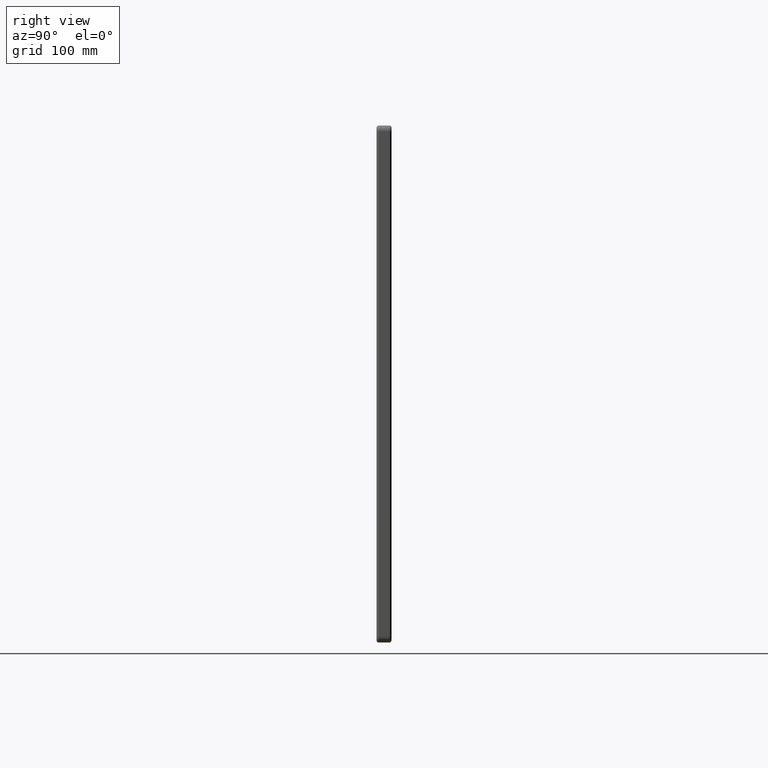
[diagram: clean part render]
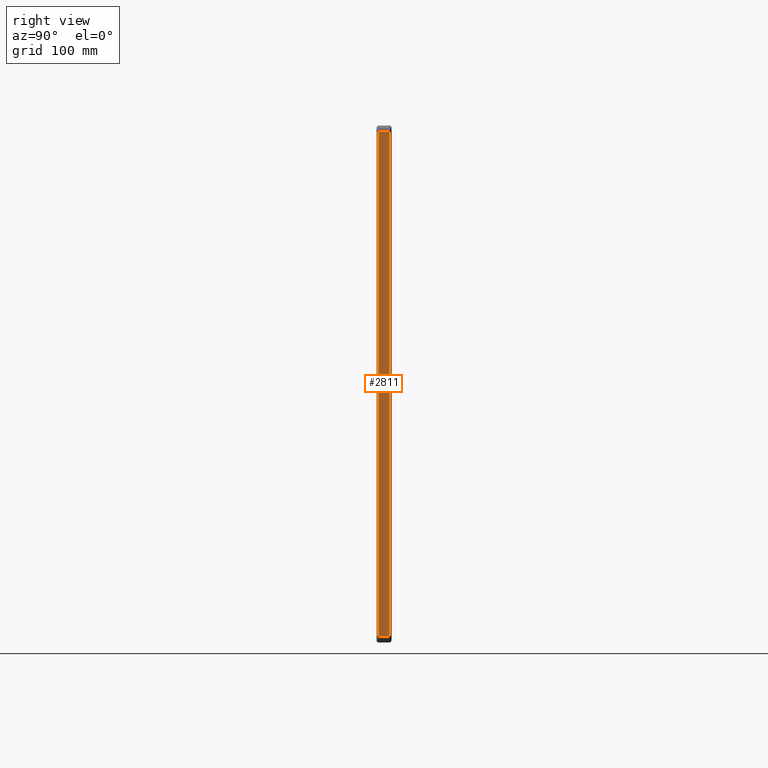
[diagram: same view with one face highlighted and labeled with its STEP entity id]
A machine part, right view. The second image highlights one B-rep face of the part: STEP entity #2811.
In plain terms, the highlighted planar face has unit normal (-1, 0, 0).
Its self-contained STEP definition (entity closure, byte-faithful):
#1237 = LINE ( 'NONE', #13875, #15425 ) ;
#1258 = DIRECTION ( 'NONE',  ( 0.0000000000000000000, 0.0000000000000000000, -1.000000000000000000 ) ) ;
#2423 = VERTEX_POINT ( 'NONE', #6091 ) ;
#2811 = ADVANCED_FACE ( 'NONE', ( #4539 ), #17680, .F. ) ;
#4265 = EDGE_CURVE ( 'NONE', #9736, #2423, #21719, .T. ) ;
#4539 = FACE_OUTER_BOUND ( 'NONE', #15090, .T. ) ;
#5561 = EDGE_CURVE ( 'NONE', #8139, #17720, #16649, .T. ) ;
#6091 = CARTESIAN_POINT ( 'NONE',  ( 224.9999999999999100, 11.00000000000000000, 220.0000000000000000 ) ) ;
#6176 = CARTESIAN_POINT ( 'NONE',  ( 224.9999999999999700, 2.000000000000003600, -220.0000000000000000 ) ) ;
#8083 = AXIS2_PLACEMENT_3D ( 'NONE', #22897, #19323, #21100 ) ;
#8139 = VERTEX_POINT ( 'NONE', #12930 ) ;
#8618 = DIRECTION ( 'NONE',  ( -0.0000000000000000000, -0.0000000000000000000, 1.000000000000000000 ) ) ;
#9039 = CARTESIAN_POINT ( 'NONE',  ( 224.9999999999999700, 11.00000000000000000, -220.0000000000000000 ) ) ;
#9167 = VECTOR ( 'NONE', #1258, 1000.000000000000000 ) ;
#9736 = VERTEX_POINT ( 'NONE', #9039 ) ;
#10119 = CARTESIAN_POINT ( 'NONE',  ( 224.9999999999999100, 11.00000000000000000, 220.0000000000000000 ) ) ;
#10822 = ORIENTED_EDGE ( 'NONE', *, *, #5561, .T. ) ;
#12312 = CARTESIAN_POINT ( 'NONE',  ( 224.9999999999999700, 13.00000000000000000, -220.0000000000000000 ) ) ;
#12470 = DIRECTION ( 'NONE',  ( -0.0000000000000000000, -1.000000000000000000, -0.0000000000000000000 ) ) ;
#12903 = ORIENTED_EDGE ( 'NONE', *, *, #4265, .T. ) ;
#12930 = CARTESIAN_POINT ( 'NONE',  ( 224.9999999999999100, 2.000000000000001800, 220.0000000000000000 ) ) ;
#13303 = CARTESIAN_POINT ( 'NONE',  ( 224.9999999999999100, 2.000000000000000000, -220.0000000000000000 ) ) ;
#13875 = CARTESIAN_POINT ( 'NONE',  ( 224.9999999999999100, 13.00000000000000000, 220.0000000000000000 ) ) ;
#15090 = EDGE_LOOP ( 'NONE', ( #15102, #10822, #18722, #12903 ) ) ;
#15102 = ORIENTED_EDGE ( 'NONE', *, *, #20822, .T. ) ;
#15425 = VECTOR ( 'NONE', #17378, 1000.000000000000000 ) ;
#15806 = EDGE_CURVE ( 'NONE', #9736, #17720, #22868, .T. ) ;
#16649 = LINE ( 'NONE', #13303, #9167 ) ;
#17378 = DIRECTION ( 'NONE',  ( -0.0000000000000000000, -1.000000000000000000, -0.0000000000000000000 ) ) ;
#17680 = PLANE ( 'NONE',  #8083 ) ;
#17720 = VERTEX_POINT ( 'NONE', #6176 ) ;
#18363 = VECTOR ( 'NONE', #8618, 1000.000000000000000 ) ;
#18722 = ORIENTED_EDGE ( 'NONE', *, *, #15806, .F. ) ;
#18965 = VECTOR ( 'NONE', #12470, 1000.000000000000000 ) ;
#19323 = DIRECTION ( 'NONE',  ( -1.000000000000000000, 0.0000000000000000000, 0.0000000000000000000 ) ) ;
#20822 = EDGE_CURVE ( 'NONE', #2423, #8139, #1237, .T. ) ;
#21100 = DIRECTION ( 'NONE',  ( 0.0000000000000000000, 0.0000000000000000000, 1.000000000000000000 ) ) ;
#21719 = LINE ( 'NONE', #10119, #18363 ) ;
#22868 = LINE ( 'NONE', #12312, #18965 ) ;
#22897 = CARTESIAN_POINT ( 'NONE',  ( 224.9999999999999100, 13.00000000000000000, -220.0000000000000000 ) ) ;